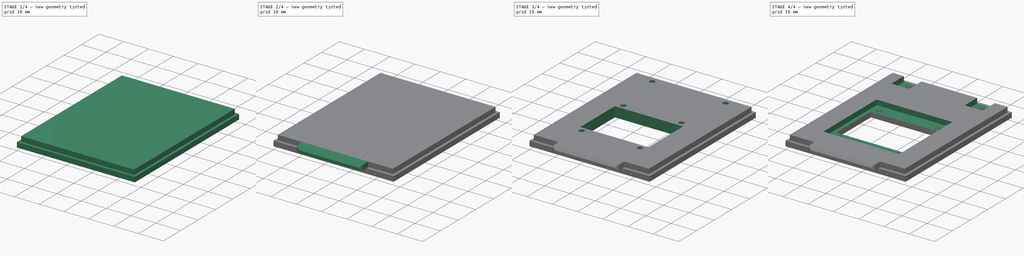
[diagram: build sequence overview — one tinted view per stage of 4, left to right]
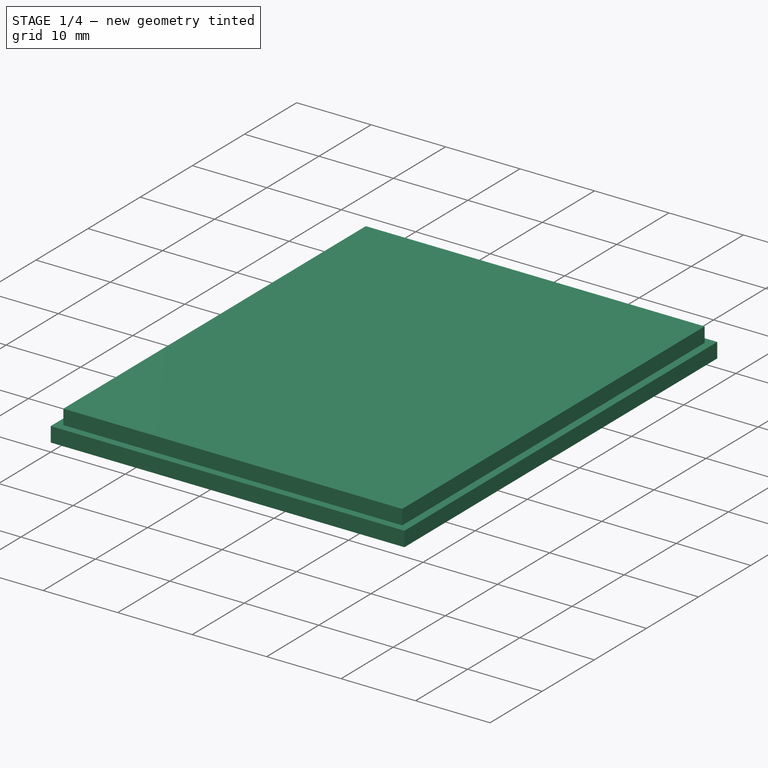
[diagram: stage 1 of 4 — iso view after this stage's code; geometry added in this stage tinted green]
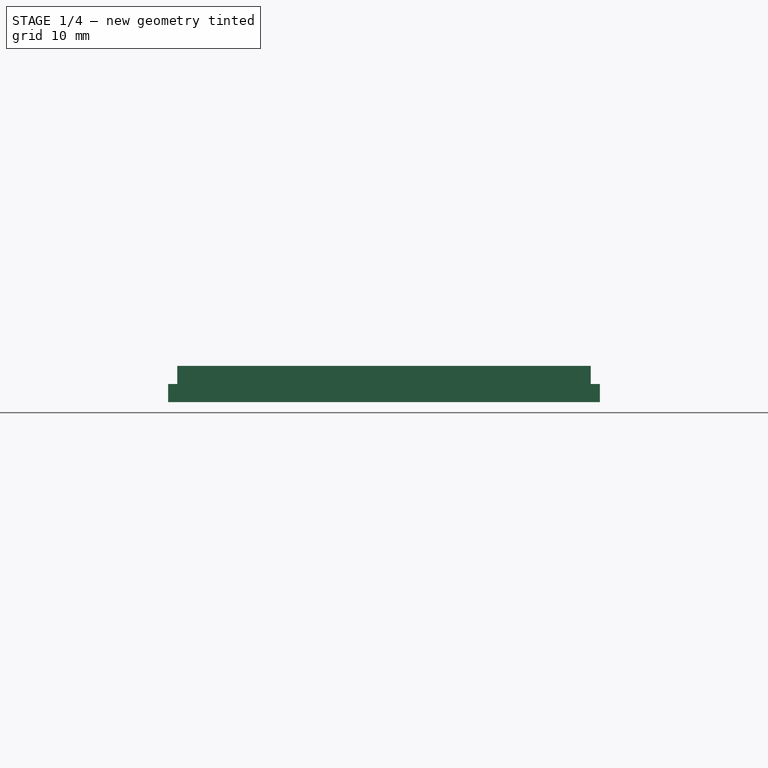
[diagram: stage 1 of 4 — front view after this stage's code; geometry added in this stage tinted green]
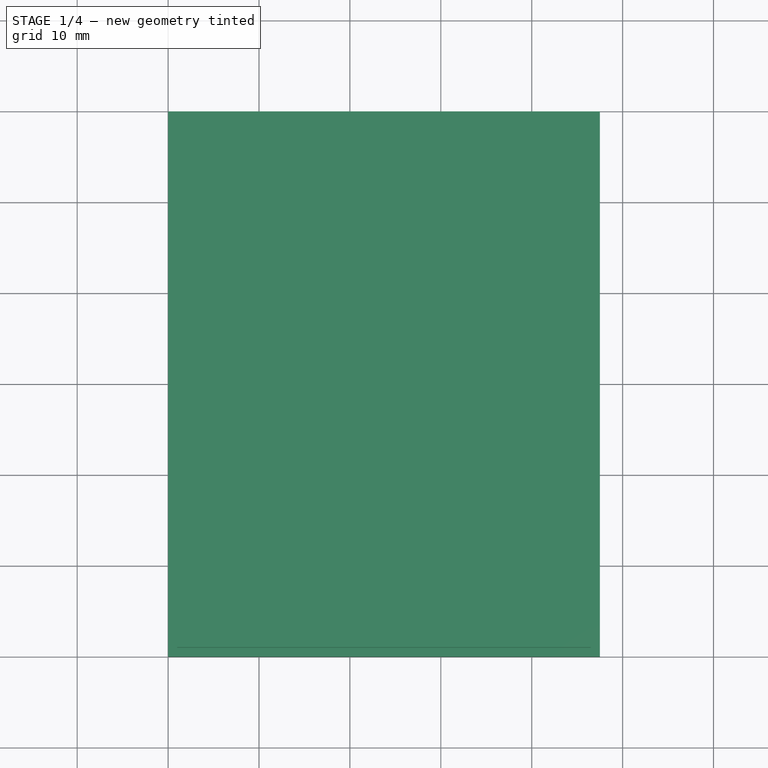
[diagram: stage 1 of 4 — top view after this stage's code; geometry added in this stage tinted green]
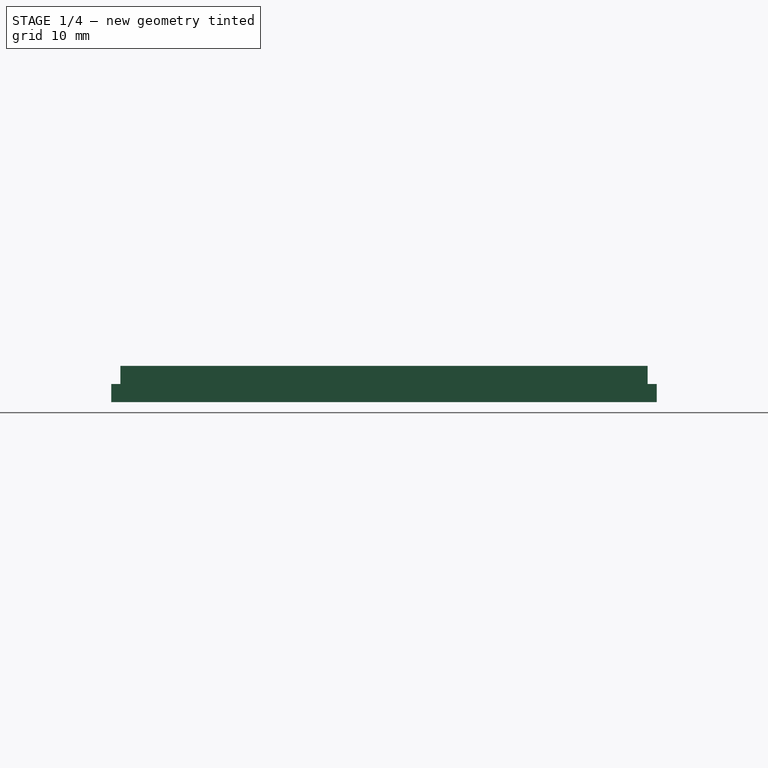
[diagram: stage 1 of 4 — right view after this stage's code; geometry added in this stage tinted green]
FCSTD DOCUMENT  (FreeCAD 0.18R)
Label: power_meter_case_screen
License: All rights reserved
LicenseURL: http://en.wikipedia.org/wiki/All_rights_reserved
objects: Sketcher::SketchObject×6, PartDesign::Pad×3, PartDesign::Chamfer×3, PartDesign::Pocket×3, PartDesign::Body×1
note: 22 computed .brp shape members not serialized (recipe doc carries the construction recipe); baked Part::Feature solids carry a one-line shape summary decoded from their .brp

FEATURE [Sketcher::SketchObject] Sketch
  MapMode = 5
  Support = -> [XY_Plane]
  sketch-geometry (4):
    g0: LineSegment StartX=0 StartY=0 StartZ=0 EndX=47.5 EndY=0 EndZ=0
    g1: LineSegment StartX=47.5 StartY=0 StartZ=0 EndX=47.5 EndY=60 EndZ=0
    g2: LineSegment StartX=47.5 StartY=60 StartZ=0 EndX=0 EndY=60 EndZ=0
    g3: LineSegment StartX=0 StartY=60 StartZ=0 EndX=0 EndY=0 EndZ=0
  constraints (11):
    c: Coincident(g0,g1)
    c: Coincident(g1,g2)
    c: Coincident(g2,g3)
    c: Coincident(g3,g0)
    c: Horizontal(g0)
    c: Horizontal(g2)
    c: Vertical(g1)
    c: Vertical(g3)
    c: Coincident(g0,g-1)
    c: Distance(g0) = 47.5
    c: Distance(g1) = 60
FEATURE [PartDesign::Pad] Pad
  Length = 2
  Length2 = 100
  Profile = -> Sketch
  Type = 0
FEATURE [Sketcher::SketchObject] Sketch001
  MapMode = 5
  Placement = pos=(0,0,2) rot=(0,0,1;0rad)
  Support = -> [Pad]
  sketch-geometry (4):
    g0: LineSegment StartX=1 StartY=1 StartZ=0 EndX=46.5 EndY=1 EndZ=0
    g1: LineSegment StartX=46.5 StartY=1 StartZ=0 EndX=46.5 EndY=59 EndZ=0
    g2: LineSegment StartX=46.5 StartY=59 StartZ=0 EndX=1 EndY=59 EndZ=0
    g3: LineSegment StartX=1 StartY=59 StartZ=0 EndX=1 EndY=1 EndZ=0
  constraints (12):
    c: Coincident(g0,g1)
    c: Coincident(g1,g2)
    c: Coincident(g2,g3)
    c: Coincident(g3,g0)
    c: Horizontal(g0)
    c: Horizontal(g2)
    c: Vertical(g1)
    c: Vertical(g3)
    c: DistanceY(g-1,g0) = 1
    c: DistanceX(g-2,g0) = 1
    c: Distance(g2) = 45.5
    c: Distance(g1) = 58
FEATURE [PartDesign::Pad] Pad001
  BaseFeature = -> Pad
  Length = 2
  Length2 = 100
  Profile = -> Sketch001
  Type = 0
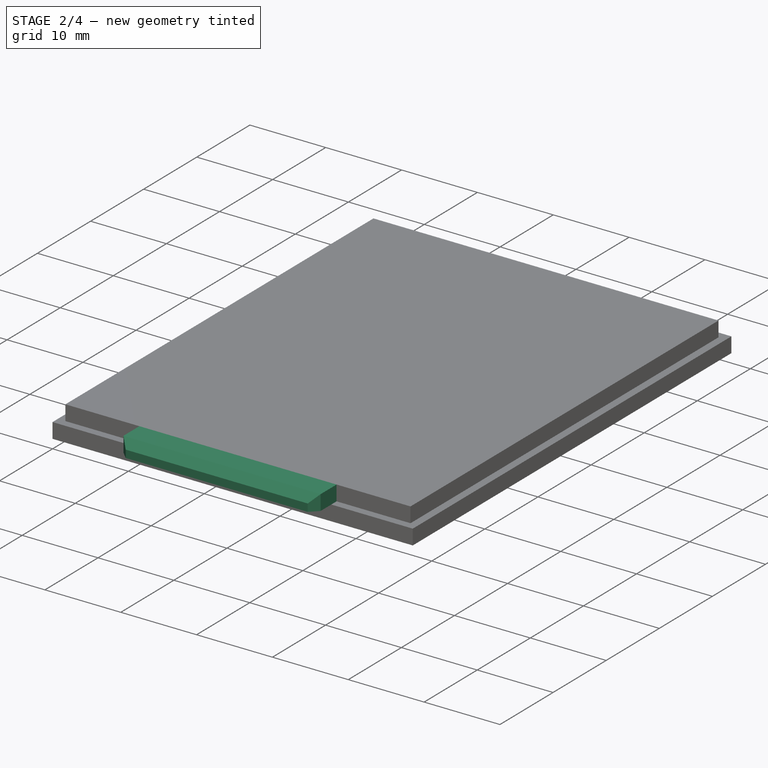
[diagram: stage 2 of 4 — iso view after this stage's code; geometry added in this stage tinted green]
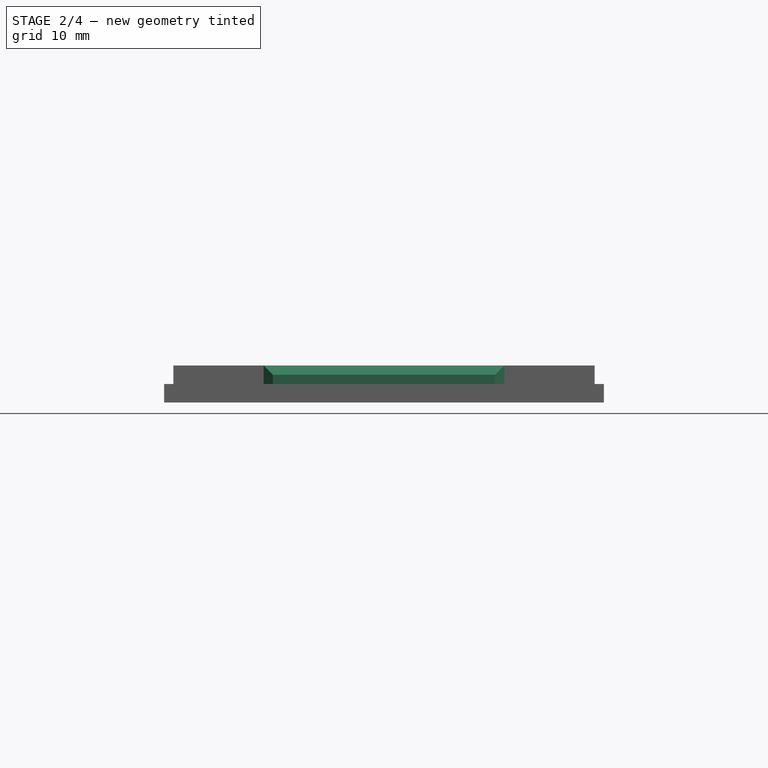
[diagram: stage 2 of 4 — front view after this stage's code; geometry added in this stage tinted green]
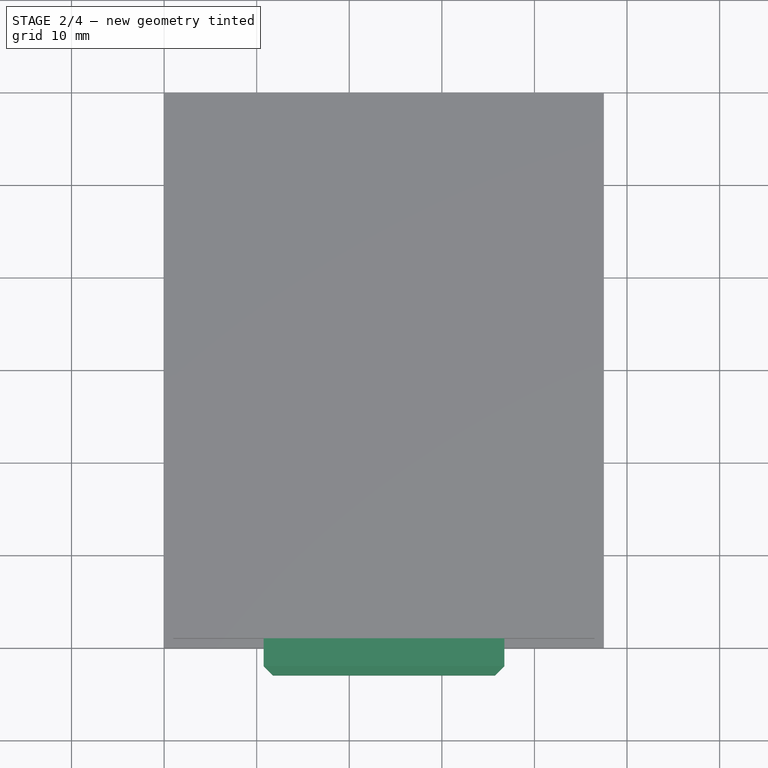
[diagram: stage 2 of 4 — top view after this stage's code; geometry added in this stage tinted green]
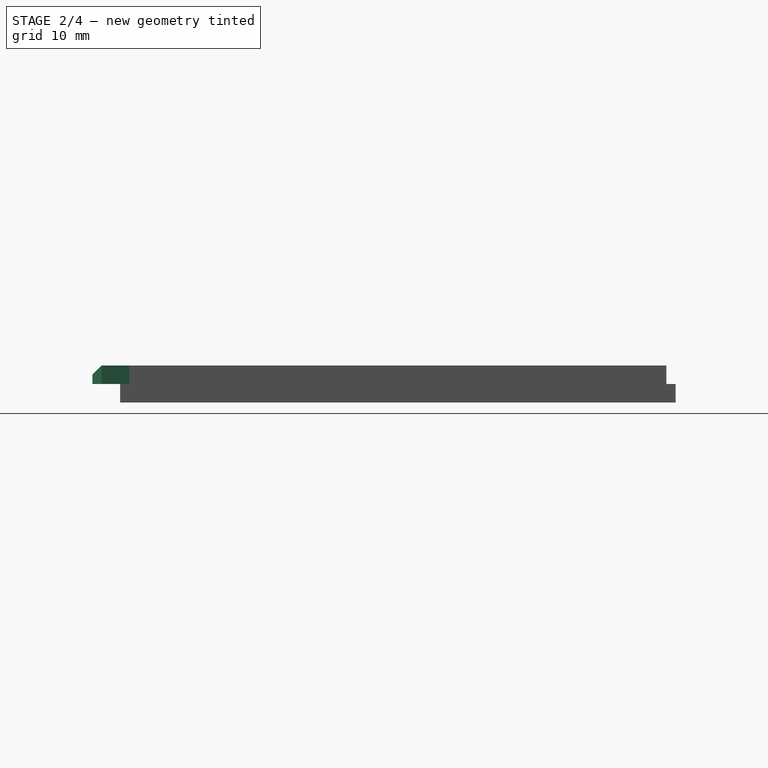
[diagram: stage 2 of 4 — right view after this stage's code; geometry added in this stage tinted green]
FEATURE [Sketcher::SketchObject] Sketch002
  MapMode = 5
  Placement = pos=(0,1,0) rot=(1,0,0;1.5708rad)
  Support = -> [Pad001]
  sketch-geometry (4):
    g0: LineSegment StartX=10.75 StartY=4 StartZ=0 EndX=36.75 EndY=4 EndZ=0
    g1: LineSegment StartX=36.75 StartY=4 StartZ=0 EndX=36.75 EndY=2 EndZ=0
    g2: LineSegment StartX=36.75 StartY=2 StartZ=0 EndX=10.75 EndY=2 EndZ=0
    g3: LineSegment StartX=10.75 StartY=2 StartZ=0 EndX=10.75 EndY=4 EndZ=0
  constraints (12):
    c: Coincident(g0,g1)
    c: Coincident(g1,g2)
    c: Coincident(g2,g3)
    c: Coincident(g3,g0)
    c: Horizontal(g0)
    c: Horizontal(g2)
    c: Vertical(g1)
    c: Vertical(g3)
    c: Distance(g0) = 26
    c: Distance(g3) = 2
    c: DistanceY(g-1,g2) = 2
    c: DistanceX(g-2,g0) = 10.75
FEATURE [PartDesign::Pad] Pad002
  BaseFeature = -> Pad001
  Length = 4
  Length2 = 100
  Profile = -> Sketch002
  Type = 0
FEATURE [PartDesign::Chamfer] Chamfer
  Base = -> Pad002 [Edge27,Edge39,Edge40]
  BaseFeature = -> Pad002
  Size = 1
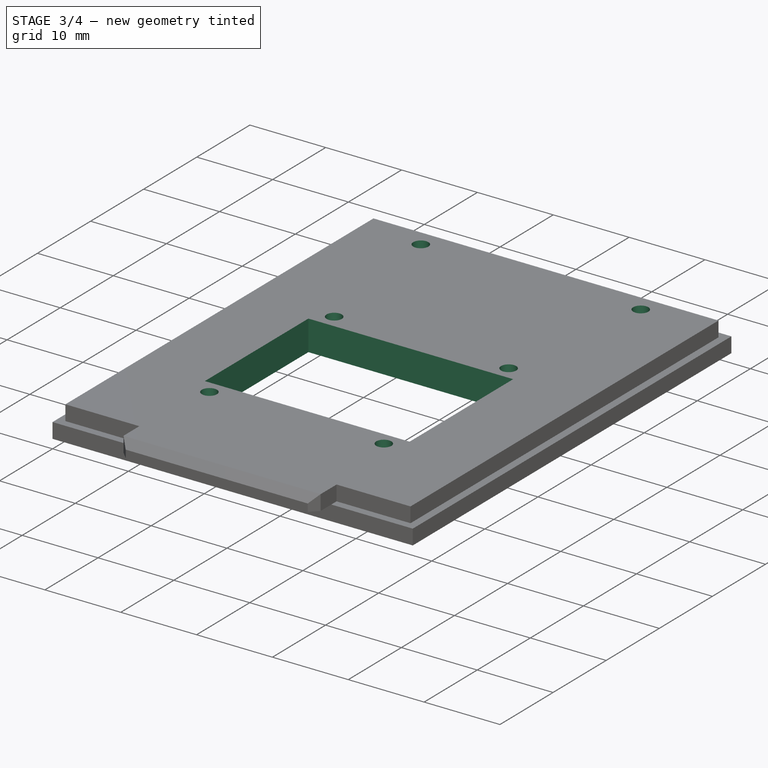
[diagram: stage 3 of 4 — iso view after this stage's code; geometry added in this stage tinted green]
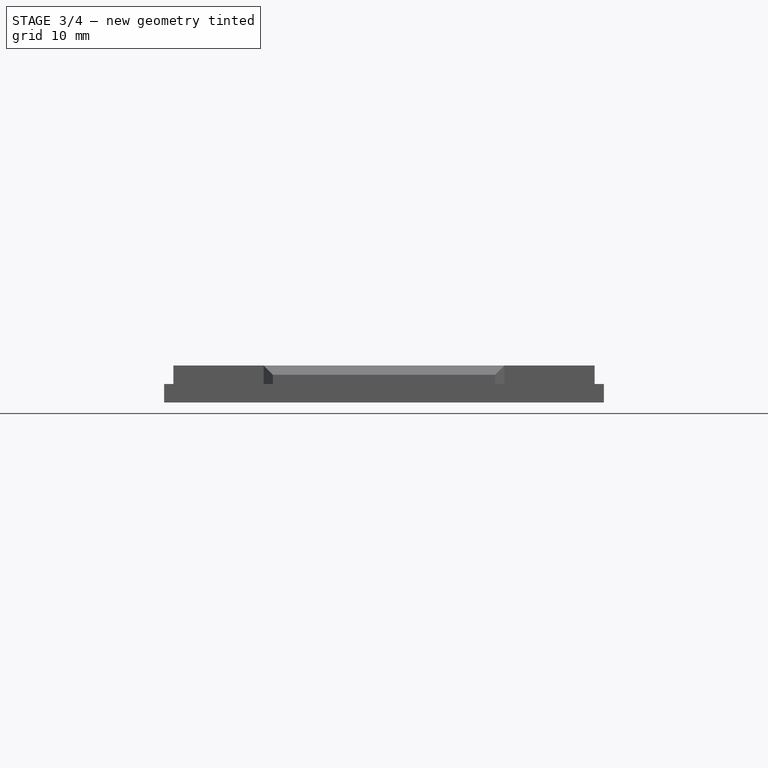
[diagram: stage 3 of 4 — front view after this stage's code; geometry added in this stage tinted green]
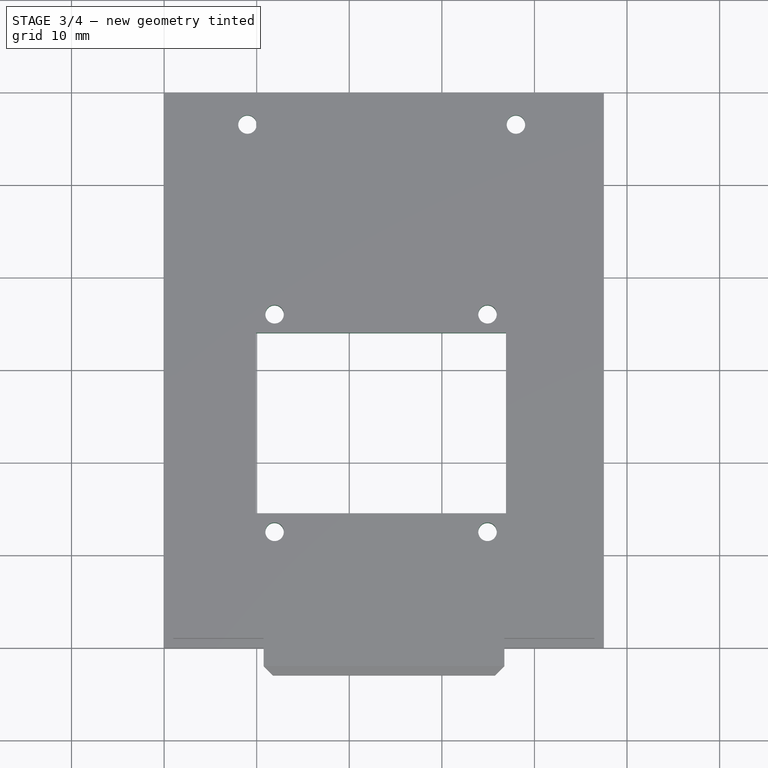
[diagram: stage 3 of 4 — top view after this stage's code; geometry added in this stage tinted green]
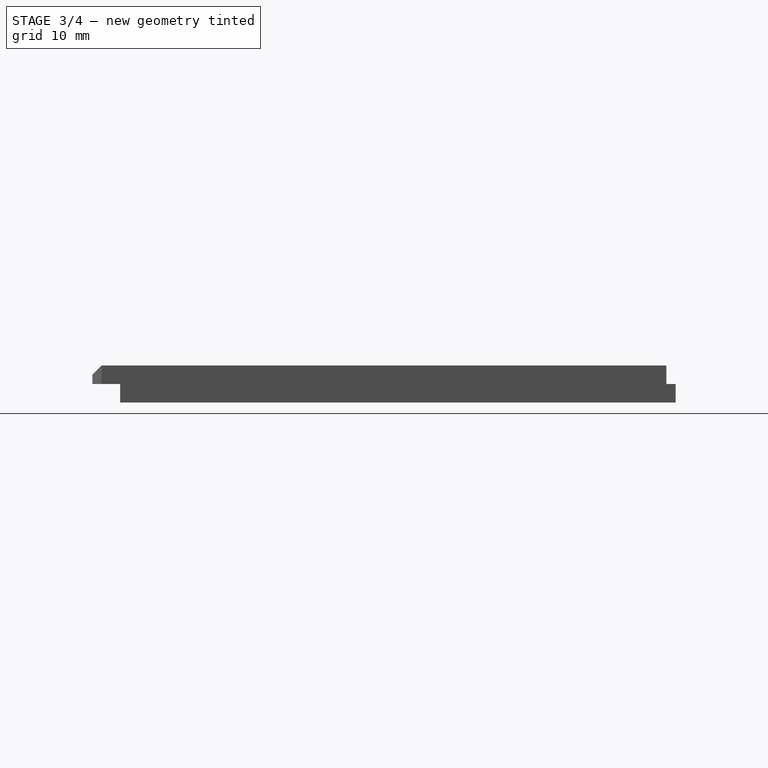
[diagram: stage 3 of 4 — right view after this stage's code; geometry added in this stage tinted green]
FEATURE [Sketcher::SketchObject] Sketch003
  MapMode = 5
  Placement = pos=(0,0,0) rot=(1,0,0;3.14159rad)
  Support = -> [Chamfer]
  expr: Constraints[3] = -56.5
  sketch-geometry (2):
    g0: Circle CenterX=9 CenterY=-56.5 CenterZ=0 NormalX=0 NormalY=0 NormalZ=1 AngleXU=0 Radius=1
    g1: Circle CenterX=38 CenterY=-56.5 CenterZ=0 NormalX=0 NormalY=0 NormalZ=1 AngleXU=0 Radius=1
  constraints (6):
    c: Radius(g1) = 1
    c: Radius(g0) = 1
    c: DistanceX(g-2,g0) = 9
    c: DistanceY(g-1,g0) = -56.5
    c: DistanceX(g-2,g1) = 38
    c: DistanceY(g-1,g1) = -56.5
FEATURE [PartDesign::Pocket] Pocket
  BaseFeature = -> Chamfer
  Length = 5
  Length2 = 100
  Profile = -> Sketch003
  Type = 0
FEATURE [PartDesign::Chamfer] Chamfer001
  Base = -> Pocket [Edge42,Edge43]
  BaseFeature = -> Pocket
  Size = 1
FEATURE [Sketcher::SketchObject] Sketch004
  MapMode = 5
  Placement = pos=(0,0,0) rot=(1,0,0;3.14159rad)
  Support = -> [Chamfer001]
  sketch-geometry (8):
    g0: LineSegment StartX=9.93 StartY=-14.5 StartZ=0 EndX=36.93 EndY=-14.5 EndZ=0
    g1: LineSegment StartX=36.93 StartY=-14.5 StartZ=0 EndX=36.93 EndY=-34 EndZ=0
    g2: LineSegment StartX=36.93 StartY=-34 StartZ=0 EndX=9.93 EndY=-34 EndZ=0
    g3: LineSegment StartX=9.93 StartY=-34 StartZ=0 EndX=9.93 EndY=-14.5 EndZ=0
    g4: Circle CenterX=11.93 CenterY=-12.5 CenterZ=0 NormalX=0 NormalY=0 NormalZ=1 AngleXU=0 Radius=1
    g5: Circle CenterX=34.93 CenterY=-12.5 CenterZ=0 NormalX=0 NormalY=0 NormalZ=1 AngleXU=0 Radius=1
    g6: Circle CenterX=11.93 CenterY=-36 CenterZ=0 NormalX=0 NormalY=0 NormalZ=1 AngleXU=0 Radius=1
    g7: Circle CenterX=34.93 CenterY=-36 CenterZ=0 NormalX=0 NormalY=0 NormalZ=1 AngleXU=0 Radius=1
  constraints (24):
    c: Coincident(g0,g1)
    c: Coincident(g1,g2)
    c: Coincident(g2,g3)
    c: Coincident(g3,g0)
    c: Horizontal(g0)
    c: Horizontal(g2)
    c: Vertical(g1)
    c: Vertical(g3)
    c: Distance(g0) = 27
    c: DistanceY(g-1,g0) = -14.5
    c: DistanceX(g-2,g0) = 9.93
    c: Radius(g4) = 1
    c: Radius(g5) = 1
    c: Radius(g7) = 1
    c: Radius(g6) = 1
    c: Distance(g4,g5) = 23
    c: Distance(g6,g7) = 23
    c: Distance(g6,g4) = 23.5
    c: Distance(g7,g5) = 23.5
    c: Distance(g5,g0) = 2
    c: Distance(g7,g2) = 2
    c: Distance(g6,g2) = 2
    c: Distance(g4,g3) = 2
    c: Distance(g6,g3) = 2
FEATURE [PartDesign::Pocket] Pocket001
  BaseFeature = -> Chamfer001
  Length = 5
  Length2 = 100
  Profile = -> Sketch004
  Type = 0
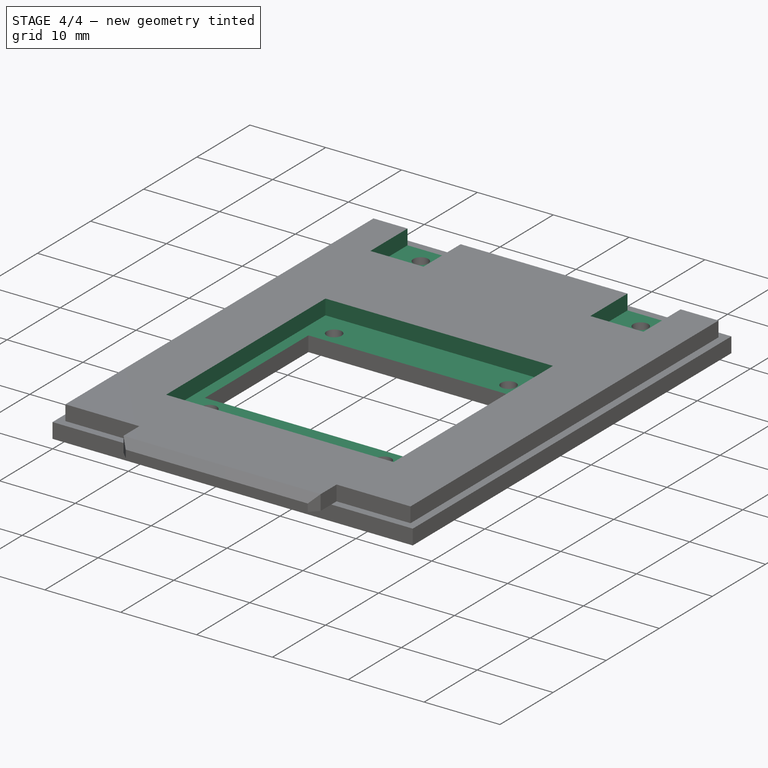
[diagram: stage 4 of 4 — iso view after this stage's code; geometry added in this stage tinted green]
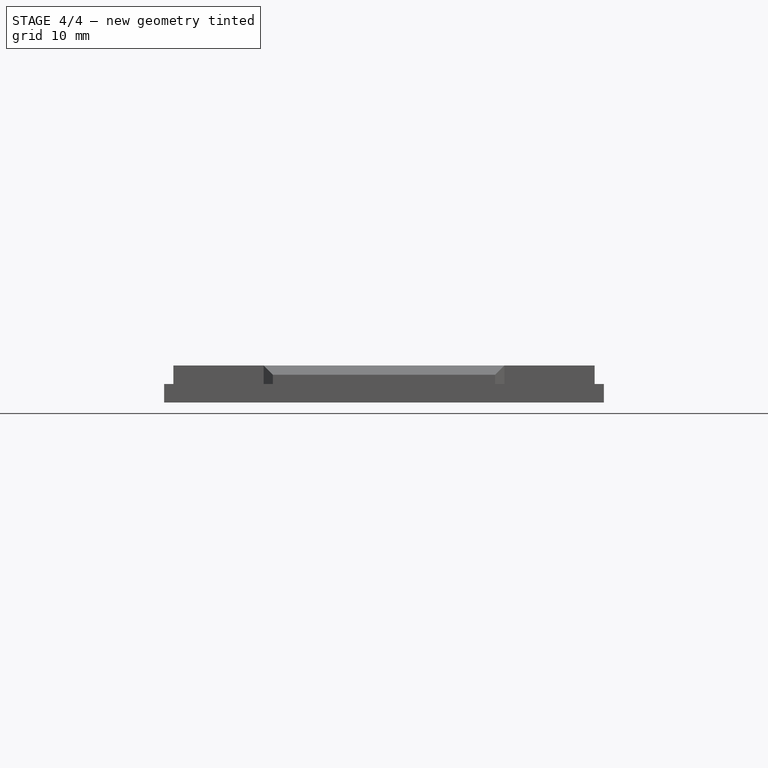
[diagram: stage 4 of 4 — front view after this stage's code; geometry added in this stage tinted green]
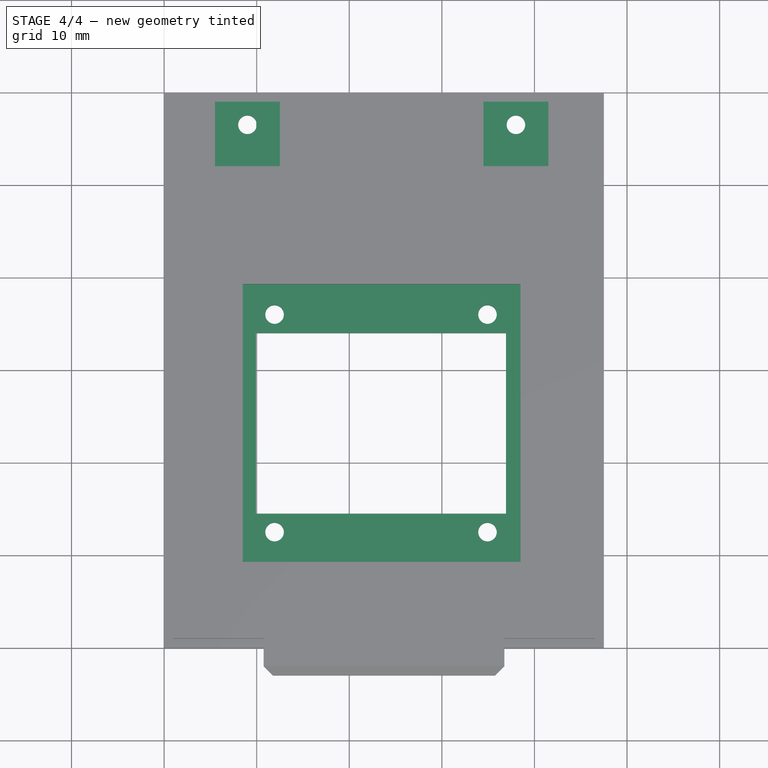
[diagram: stage 4 of 4 — top view after this stage's code; geometry added in this stage tinted green]
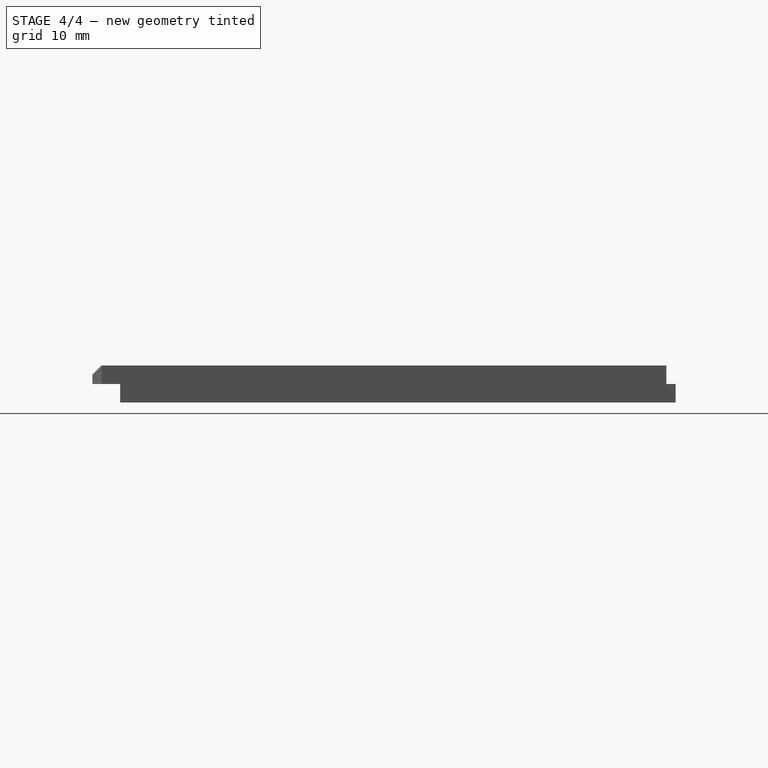
[diagram: stage 4 of 4 — right view after this stage's code; geometry added in this stage tinted green]
FEATURE [PartDesign::Chamfer] Chamfer002
  Base = -> Pocket001 [Edge7,Edge8,Edge10,Edge9]
  BaseFeature = -> Pocket001
  Size = 1
FEATURE [Sketcher::SketchObject] Sketch005
  MapMode = 5
  Placement = pos=(0,0,4) rot=(0,0,1;0rad)
  Support = -> [Chamfer002]
  sketch-geometry (12):
    g0: LineSegment StartX=8.5 StartY=39.25 StartZ=0 EndX=38.5 EndY=39.25 EndZ=0
    g1: LineSegment StartX=38.5 StartY=39.25 StartZ=0 EndX=38.5 EndY=9.25 EndZ=0
    g2: LineSegment StartX=38.5 StartY=9.25 StartZ=0 EndX=8.5 EndY=9.25 EndZ=0
    g3: LineSegment StartX=8.5 StartY=9.25 StartZ=0 EndX=8.5 EndY=39.25 EndZ=0
    g4: LineSegment StartX=5.5 StartY=59 StartZ=0 EndX=12.5 EndY=59 EndZ=0
    g5: LineSegment StartX=12.5 StartY=59 StartZ=0 EndX=12.5 EndY=52 EndZ=0
    g6: LineSegment StartX=12.5 StartY=52 StartZ=0 EndX=5.5 EndY=52 EndZ=0
    g7: LineSegment StartX=5.5 StartY=52 StartZ=0 EndX=5.5 EndY=59 EndZ=0
    g8: LineSegment StartX=34.5 StartY=59 StartZ=0 EndX=41.5 EndY=59 EndZ=0
    g9: LineSegment StartX=41.5 StartY=59 StartZ=0 EndX=41.5 EndY=52 EndZ=0
    g10: LineSegment StartX=41.5 StartY=52 StartZ=0 EndX=34.5 EndY=52 EndZ=0
    g11: LineSegment StartX=34.5 StartY=52 StartZ=0 EndX=34.5 EndY=59 EndZ=0
  constraints (36):
    c: Coincident(g0,g1)
    c: Coincident(g1,g2)
    c: Coincident(g2,g3)
    c: Coincident(g3,g0)
    c: Horizontal(g0)
    c: Horizontal(g2)
    c: Vertical(g1)
    c: Vertical(g3)
    c: Distance(g1) = 30
    c: Distance(g0) = 30
    c: DistanceY(g-1,g2) = 9.25
    c: DistanceX(g-2,g2) = 8.5
    c: Coincident(g4,g5)
    c: Coincident(g5,g6)
    c: Coincident(g6,g7)
    c: Coincident(g7,g4)
    c: Horizontal(g4)
    c: Horizontal(g6)
    c: Vertical(g5)
    c: Vertical(g7)
    c: Coincident(g8,g9)
    c: Coincident(g9,g10)
    c: Coincident(g10,g11)
    c: Coincident(g11,g8)
    c: Horizontal(g8)
    c: Horizontal(g10)
    c: Vertical(g9)
    c: Vertical(g11)
    c: Distance(g5) = 7
    c: Distance(g6) = 7
    c: Distance(g9) = 7
    c: Distance(g10) = 7
    c: DistanceX(g-2,g6) = 5.5
    c: DistanceX(g-2,g10) = 34.5
    c: DistanceY(g-1,g5) = 52
    c: DistanceY(g-1,g9) = 52
FEATURE [PartDesign::Pocket] Pocket002
  BaseFeature = -> Chamfer002
  Length = 2
  Length2 = 100
  Profile = -> Sketch005
  Type = 0
FEATURE [PartDesign::Body] Body
  Group = -> [Sketch,Pad,Sketch001,Pad001,Sketch002,Pad002,Chamfer,Sketch003,Pocket,Chamfer001,Sketch004,Pocket001,Chamfer002,Sketch005,Pocket002]
  Origin = -> Origin
  Tip = -> Pocket002
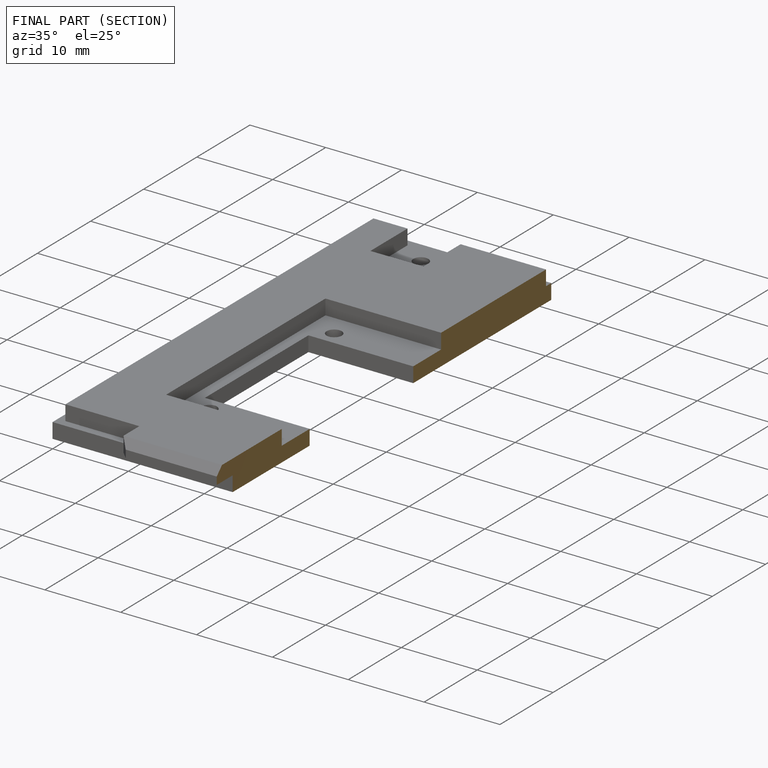
[diagram: finished part — half-section view (interior)]
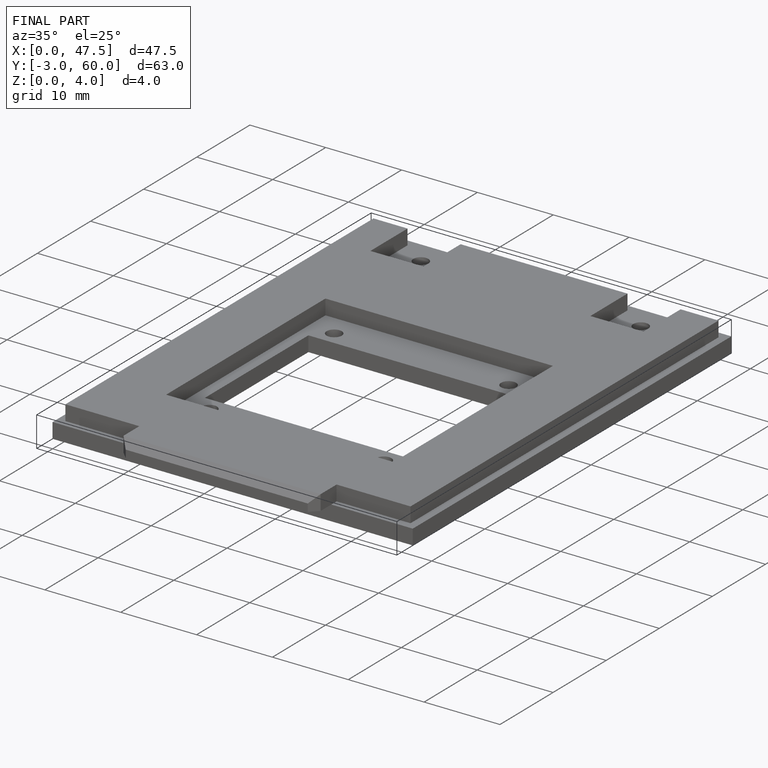
[diagram: finished part — iso view with bounding-box wireframe]
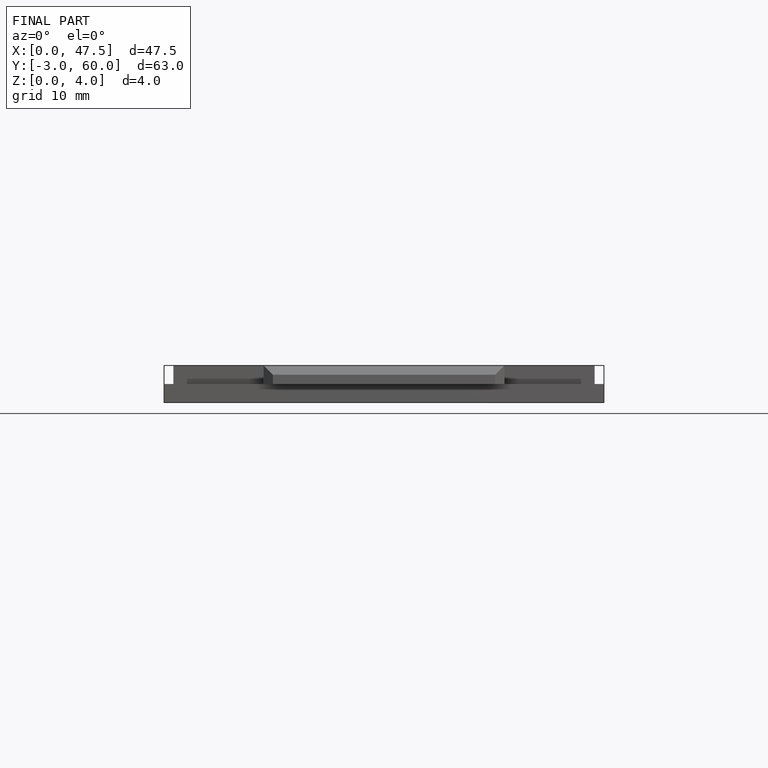
[diagram: finished part — front view with bounding-box wireframe]
